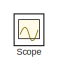
[diagram: root canvas - part 1/2, top left region]
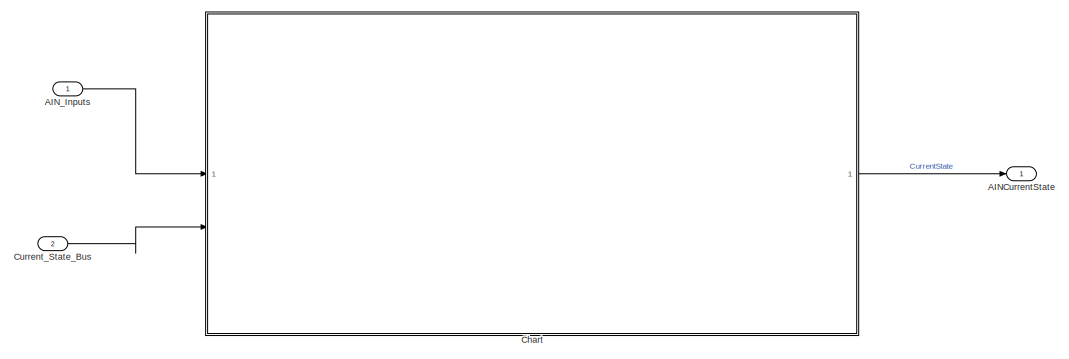
[diagram: root canvas - part 2/2, bottom right region]
MODEL slx_bc581908f3b1
KIND model
CONFIG AbsTol = auto
CONFIG EnableMultiTasking = off
CONFIG FixedStep = auto
CONFIG MaxStep = auto
CONFIG MinStep = auto
CONFIG RelTol = 1e-3
CONFIG SampleTimeConstraint = Unconstrained
CONFIG SolverName = VariableStepAuto
CONFIG StartTime = 0.0
CONFIG StopTime = 10.0
BLOCK [Outport] AINCurrentState
BLOCK [Inport] AIN_Inputs
  OutDataTypeStr = Bus: AINStatusBus
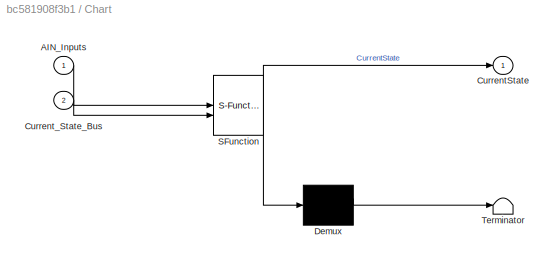
BLOCK [SubSystem] Chart
  ErrorFcn = Stateflow.Translate.translate
  PermitHierarchicalResolution = ExplicitOnly
  SFBlockType = Chart
  TreatAsAtomicUnit = on
BLOCK [Demux] Chart/ Demux 
  Outputs = 1
BLOCK [S-Function] Chart/ SFunction 
  EnableBusSupport = off
  FunctionName = sf_sfun
  PortCounts = [2 2]
  SFcnIsStateOwnerBlock = off
  SFunctionDeploymentMode = off
  Tag = Stateflow S-Function 3
BLOCK [Terminator] Chart/ Terminator 
BLOCK [Inport] Chart/AIN_Inputs
BLOCK [Outport] Chart/CurrentState
BLOCK [Inport] Chart/Current_State_Bus
  Port = 2
BLOCK [Inport] Current_State_Bus
  OutDataTypeStr = Bus: CurrentStateBus
  Port = 2
BLOCK [Scope] Scope
  ActiveDisplayYMaximum = 1
  ActiveDisplayYMinimum = -1
  Floating = off
  GraphicalSettings = {"Style":{"BackgroundColor":[0.12941176470588237,0.12941176470588237,0.12941176470588237],"AxesColor":[0.07058823529411765,0.07058823529411765,0.07058823529411765],"LabelsColor":[0.8509803921568627,0.8509803921568627,0.8509803921568627],"PreserveColors":false,"Visible":[true],"LineStyle":["-"],"LineWidth":[1.5],"BarWidth":[0.9],"LineColor":["auto"],"LineFaceAlpha":[1],"LineEdgeAlpha":[1],"Marker":...<+1912ch>
  IOType = viewer
  MultipleDisplayCache = [{"MaxYLimMag":1,"MaxYLimReal":1,"MinYLimMag":0,"MinYLimReal":-1,"PlotAsMagnitudePhase":false,"ShowGrid":true,"ShowLegend":false,"Title":"%<SignalLabel>","YLabel":""}]
  NumInputPorts = 1
  ScopeFrameLocation = window
  WasSavedAsWebScope = on
  WindowPosition = [995.000000,7.000000,511.000000,904.000000,]
LINE AIN_Inputs:1 -> Chart:1
LINE Chart:1 -> AINCurrentState:1
LINE Current_State_Bus:1 -> Chart:2
CHART Chart states=3 transitions=4
  STATE_LABEL 'AIN_Deactivated\n\nentry:\n   CurrentState = StatusType.Deactivated;'
  STATE_LABEL 'AIN_Active\n\nentry:\n   CurrentState = StatusType.Active;'
  STATE_LABEL 'AIN_Standby\n\nentry:\n    CurrentState = StatusType.Standby;\n'
CHART  states=0 transitions=0
